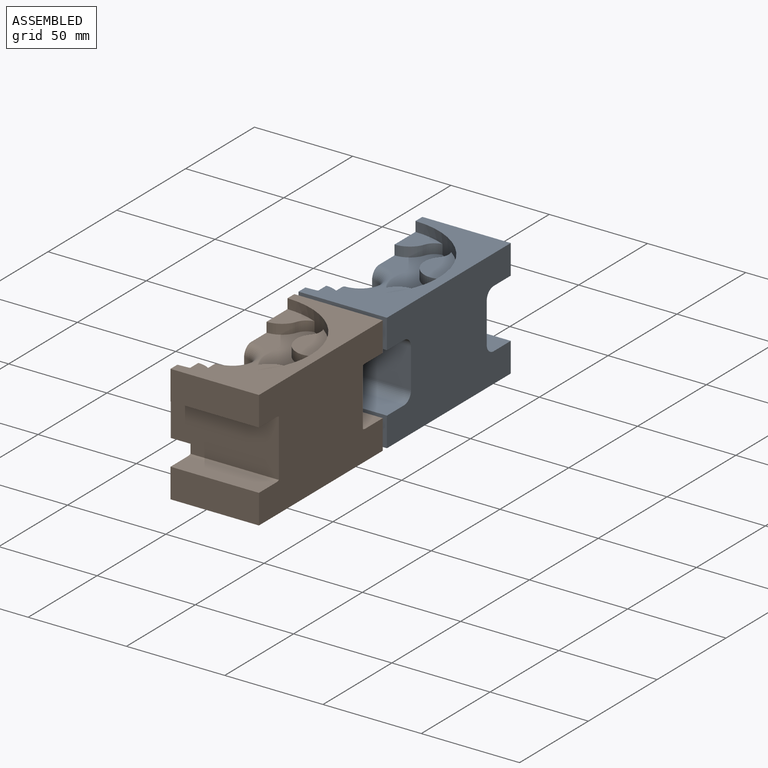
[diagram: assembled view]
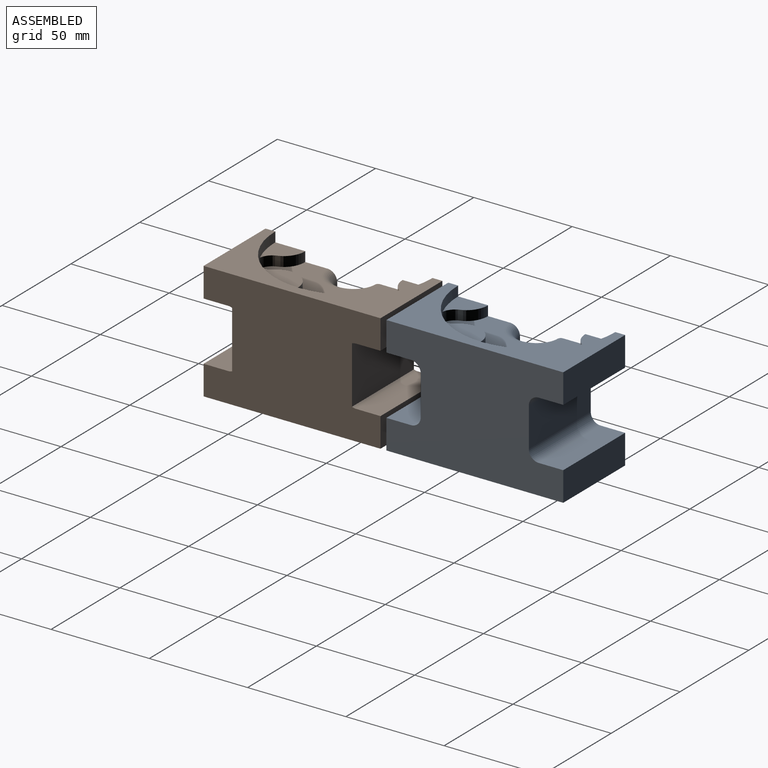
[diagram: assembled view, second angle]
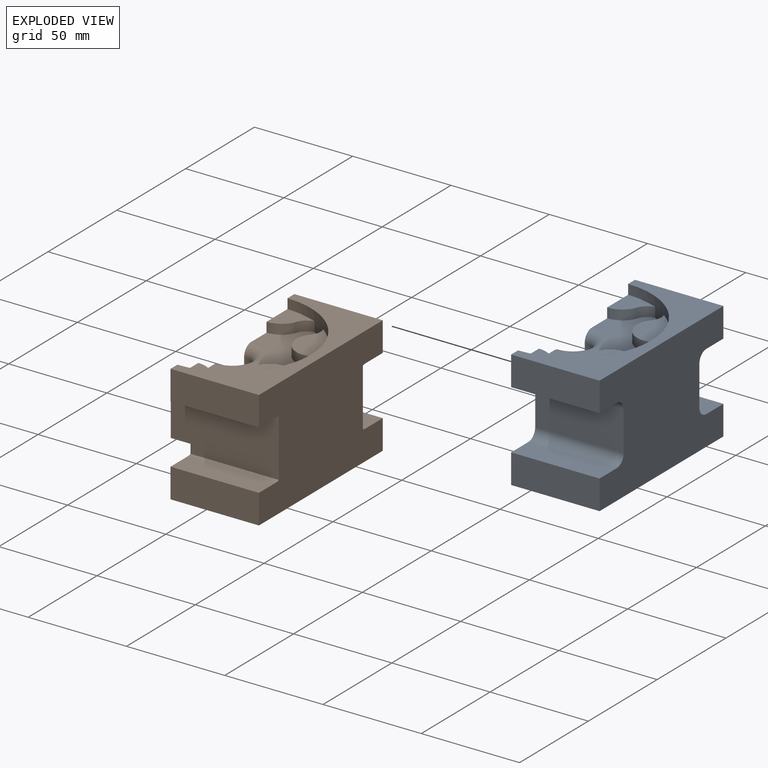
[diagram: exploded view]
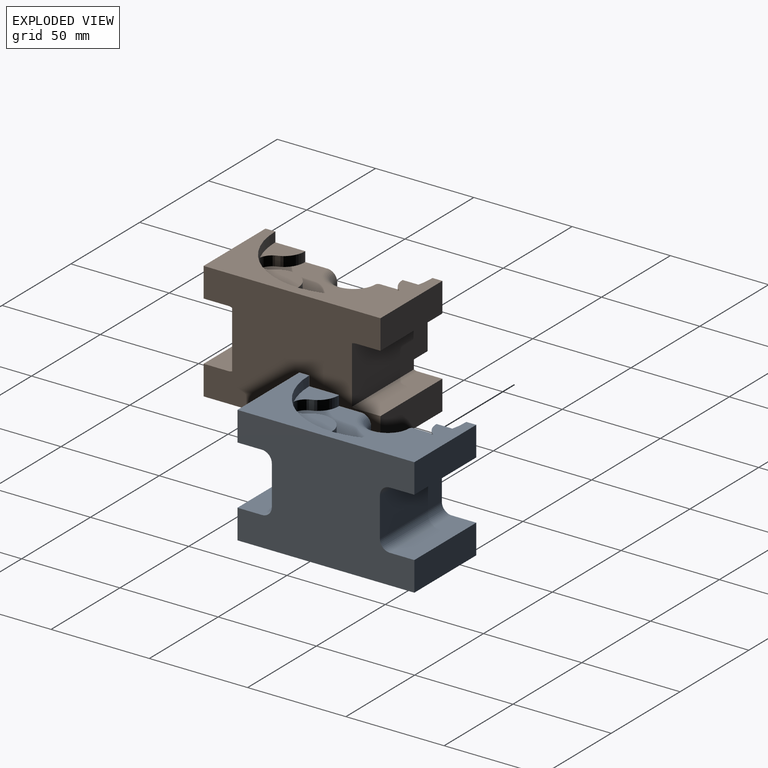
[diagram: exploded view, second angle]
ASSEMBLY  parts=2 mates=2
PART A: 52 faces, bbox 45x90x60 mm
  f0: plane 90x60mm, normal (-1,0,0), area 2774.6mm2, adj f1,f2,f3,f4,f5,f6,f7,f8
  f1: plane 45x20mm, normal (0,1,0), area 900mm2, adj f0,f2,f16,f17
  f2: cylinder r=5mm len=45mm, axis (-1,0,0), area 353.4mm2, adj f0,f1,f3,f17
  f3: plane 45x12.5mm, normal (0,0,-1), area 562.5mm2, adj f0,f2,f4,f17
  f4: plane 45x15mm, normal (0,1,0), area 675mm2, adj f0,f3,f5,f17
  f5: plane 90x45mm, normal (0,0,1), area 1536.7mm2, adj f0,f4,f6,f17,f31
  f6: plane 45x15mm, normal (0,-1,0), area 675mm2, adj f0,f5,f7,f17
  f7: plane 45x12.5mm, normal (0,0,-1), area 562.5mm2, adj f0,f6,f8,f17
  f8: cylinder r=5mm len=45mm, axis (-1,0,0), area 353.4mm2, adj f0,f7,f9,f17
  f9: plane 45x20mm, normal (0,-1,0), area 900mm2, adj f0,f8,f10,f17
  f10: cylinder r=5mm len=45mm, axis (-1,0,0), area 353.4mm2, adj f0,f9,f11,f17
  f11: plane 45x12.5mm, normal (0,0,1), area 562.5mm2, adj f0,f10,f12,f17
  f12: plane 45x15mm, normal (0,-1,0), area 675mm2, adj f0,f11,f13,f17
  f13: plane 90x45mm, normal (0,0,-1), area 4050mm2, adj f0,f12,f14,f17
  f14: plane 45x15mm, normal (0,1,0), area 675mm2, adj f0,f13,f15,f17
  f15: plane 45x12.5mm, normal (0,0,1), area 562.5mm2, adj f0,f14,f16,f17
  f16: cylinder r=5mm len=45mm, axis (-1,0,0), area 353.4mm2, adj f0,f1,f15,f17
  f17: plane 90x60mm, normal (1,0,0), area 4371.5mm2, adj f1,f2,f3,f4,f5,f6,f7,f8
  f18: plane 73.21x40mm, normal (0,0,1), area 1623.7mm2, adj f0,f26,f27,f28,f29,f30,f40,f41
  f19: plane 73.21x40mm, normal (0,0,-1), area 1337.5mm2, adj f0,f21,f26,f27,f28,f29,f30,f40
  f20: plane 73.21x40mm, normal (0,0,1), area 1337.5mm2, adj f0,f23,f24,f25,f31,f32,f33,f34
  f21: torus R=13.5mm, axis (0,0,-1), area 254.6mm2, adj f0,f19,f22
  f22: cylinder r=8.5mm len=30mm, axis (0,0,-1), area 801.1mm2, adj f0,f21,f23
  f23: torus R=13.5mm, axis (0,0,-1), area 254.6mm2, adj f0,f20,f22
  f24: extruded ~10.34x6.98mm, area 66.7mm2, adj f0,f20,f35,f50
  f25: extruded ~10.34x7.13mm, area 67mm2, adj f0,f20,f36,f49
  f26: extruded ~10.34x6.98mm, area 66.7mm2, adj f0,f18,f19,f43
  f27: extruded ~10.34x7.13mm, area 67mm2, adj f0,f18,f19,f44
  f28: cylinder r=40mm len=8.67mm, axis (0,0,-1), area 43.5mm2, adj f18,f19,f41,f45
  f29: cylinder r=40mm len=7.52mm, axis (0,0,-1), area 43.5mm2, adj f18,f19,f44,f46
  f30: cylinder r=40mm len=7.51mm, axis (0,0,-1), area 43.5mm2, adj f18,f19,f40,f43
  f31: cylinder r=40mm len=80mm, axis (0,0,-1), area 758.7mm2, adj f0,f5,f20,f33,f34,f35,f36,f38
  f32: extruded ~18.18x12.74mm, area 133.7mm2, adj f20,f33,f34,f51
  f33: cylinder r=7.1mm len=7.1mm, axis (0,0,1), area 39.9mm2, adj f20,f31,f32,f51
  f34: cylinder r=7.1mm len=7.34mm, axis (0,0,1), area 39.2mm2, adj f20,f31,f32,f51
  f35: cylinder r=7.1mm len=5.81mm, axis (0,0,1), area 39.9mm2, adj f20,f24,f31,f50
  f36: cylinder r=7.1mm len=5.76mm, axis (0,0,1), area 39.2mm2, adj f20,f25,f31,f49
  f37: extruded ~18.03x12.94mm, area 133.7mm2, adj f20,f38,f39,f48
  f38: cylinder r=7.1mm len=7.46mm, axis (0,0,1), area 39.9mm2, adj f20,f31,f37,f48
  f39: cylinder r=7.1mm len=6.96mm, axis (0,0,1), area 39.2mm2, adj f20,f31,f37,f48
  f40: cylinder r=7.1mm len=7.34mm, axis (0,0,1), area 39.2mm2, adj f18,f19,f30,f42
  f41: cylinder r=7.1mm len=7.1mm, axis (0,0,1), area 39.9mm2, adj f18,f19,f28,f42
  f42: extruded ~18.18x12.74mm, area 133.7mm2, adj f18,f19,f40,f41
  f43: cylinder r=7.1mm len=5.81mm, axis (0,0,1), area 39.9mm2, adj f18,f19,f26,f30
  f44: cylinder r=7.1mm len=5.76mm, axis (0,0,1), area 39.2mm2, adj f18,f19,f27,f29
  f45: cylinder r=7.1mm len=6.96mm, axis (0,0,1), area 39.2mm2, adj f18,f19,f28,f47
  f46: cylinder r=7.1mm len=7.46mm, axis (0,0,1), area 39.9mm2, adj f18,f19,f29,f47
  f47: extruded ~18.03x12.94mm, area 133.7mm2, adj f18,f19,f45,f46
  f48: plane 27.92x19.9mm, normal (0,0,1), area 296.5mm2, adj f31,f37,f38,f39
  f49: plane 16.1x15.23mm, normal (0,0,1), area 147.7mm2, adj f0,f25,f31,f36
  f50: plane 16.15x15.23mm, normal (0,0,1), area 148.8mm2, adj f0,f24,f31,f35
  f51: plane 27.94x19.84mm, normal (0,0,1), area 296.5mm2, adj f31,f32,f33,f34
PART B: 60 faces, bbox 55x90x60 mm
  f0: plane 90x60mm, normal (-1,0,0), area 2814.2mm2, adj f1,f2,f3,f4,f5,f6,f7,f8
  f1: cylinder r=5mm len=45mm, axis (-1,0,0), area 92.6mm2, adj f0,f2,f15,f59
  f2: plane 45x12.5mm, normal (0,0,-1), area 562.5mm2, adj f0,f1,f3,f15
  f3: plane 45x15mm, normal (0,1,0), area 675mm2, adj f0,f2,f4,f15
  f4: plane 90x45mm, normal (0,0,1), area 1536.7mm2, adj f0,f3,f5,f15,f29
  f5: plane 45x15mm, normal (0,-1,0), area 675mm2, adj f0,f4,f6,f15
  f6: plane 45x12.5mm, normal (0,0,-1), area 562.5mm2, adj f0,f5,f7,f15
  f7: cylinder r=5mm len=45mm, axis (-1,0,0), area 92.6mm2, adj f0,f6,f15,f54
  f8: cylinder r=5mm len=45mm, axis (-1,0,0), area 92.6mm2, adj f0,f9,f15,f54
  f9: plane 45x12.5mm, normal (0,0,1), area 562.5mm2, adj f0,f8,f10,f15
  f10: plane 45x15mm, normal (0,-1,0), area 675mm2, adj f0,f9,f11,f15
  f11: plane 90x45mm, normal (0,0,-1), area 4050mm2, adj f0,f10,f12,f15
  f12: plane 45x15mm, normal (0,1,0), area 675mm2, adj f0,f11,f13,f15
  f13: plane 45x12.5mm, normal (0,0,1), area 562.5mm2, adj f0,f12,f14,f15
  f14: cylinder r=5mm len=45mm, axis (-1,0,0), area 92.6mm2, adj f0,f13,f15,f59
  f15: plane 90x60mm, normal (1,0,0), area 4531.1mm2, adj f1,f2,f3,f4,f5,f6,f7,f8
  f16: plane 73.21x40mm, normal (0,0,1), area 1623.7mm2, adj f0,f24,f25,f26,f27,f28,f38,f39
  f17: plane 73.21x40mm, normal (0,0,-1), area 1337.5mm2, adj f0,f19,f24,f25,f26,f27,f28,f38
  f18: plane 73.21x40mm, normal (0,0,1), area 1337.5mm2, adj f0,f21,f22,f23,f29,f30,f31,f32
  f19: torus R=13.5mm, axis (0,0,-1), area 254.6mm2, adj f0,f17,f20
  f20: cylinder r=8.5mm len=30mm, axis (0,0,-1), area 801.1mm2, adj f0,f19,f21
  f21: torus R=13.5mm, axis (0,0,-1), area 254.6mm2, adj f0,f18,f20
  f22: extruded ~10.34x6.98mm, area 66.7mm2, adj f0,f18,f33,f48
  f23: extruded ~10.34x7.13mm, area 67mm2, adj f0,f18,f34,f47
  f24: extruded ~10.34x6.98mm, area 66.7mm2, adj f0,f16,f17,f41
  f25: extruded ~10.34x7.13mm, area 67mm2, adj f0,f16,f17,f42
  f26: cylinder r=40mm len=8.67mm, axis (0,0,-1), area 43.5mm2, adj f16,f17,f39,f43
  f27: cylinder r=40mm len=7.52mm, axis (0,0,-1), area 43.5mm2, adj f16,f17,f42,f44
  f28: cylinder r=40mm len=7.51mm, axis (0,0,-1), area 43.5mm2, adj f16,f17,f38,f41
  f29: cylinder r=40mm len=80mm, axis (0,0,-1), area 758.7mm2, adj f0,f4,f18,f31,f32,f33,f34,f36
  f30: extruded ~18.18x12.74mm, area 133.7mm2, adj f18,f31,f32,f49
  f31: cylinder r=7.1mm len=7.1mm, axis (0,0,1), area 39.9mm2, adj f18,f29,f30,f49
  f32: cylinder r=7.1mm len=7.34mm, axis (0,0,1), area 39.2mm2, adj f18,f29,f30,f49
  f33: cylinder r=7.1mm len=5.81mm, axis (0,0,1), area 39.9mm2, adj f18,f22,f29,f48
  f34: cylinder r=7.1mm len=5.76mm, axis (0,0,1), area 39.2mm2, adj f18,f23,f29,f47
  f35: extruded ~18.03x12.94mm, area 133.7mm2, adj f18,f36,f37,f46
  f36: cylinder r=7.1mm len=7.46mm, axis (0,0,1), area 39.9mm2, adj f18,f29,f35,f46
  f37: cylinder r=7.1mm len=6.96mm, axis (0,0,1), area 39.2mm2, adj f18,f29,f35,f46
  f38: cylinder r=7.1mm len=7.34mm, axis (0,0,1), area 39.2mm2, adj f16,f17,f28,f40
  f39: cylinder r=7.1mm len=7.1mm, axis (0,0,1), area 39.9mm2, adj f16,f17,f26,f40
  f40: extruded ~18.18x12.74mm, area 133.7mm2, adj f16,f17,f38,f39
  f41: cylinder r=7.1mm len=5.81mm, axis (0,0,1), area 39.9mm2, adj f16,f17,f24,f28
  f42: cylinder r=7.1mm len=5.76mm, axis (0,0,1), area 39.2mm2, adj f16,f17,f25,f27
  f43: cylinder r=7.1mm len=6.96mm, axis (0,0,1), area 39.2mm2, adj f16,f17,f26,f45
  f44: cylinder r=7.1mm len=7.46mm, axis (0,0,1), area 39.9mm2, adj f16,f17,f27,f45
  f45: extruded ~18.03x12.94mm, area 133.7mm2, adj f16,f17,f43,f44
  f46: plane 27.92x19.9mm, normal (0,0,1), area 296.5mm2, adj f29,f35,f36,f37
  f47: plane 16.1x15.23mm, normal (0,0,1), area 147.7mm2, adj f0,f23,f29,f34
  f48: plane 16.15x15.23mm, normal (0,0,1), area 148.8mm2, adj f0,f22,f29,f33
  f49: plane 27.94x19.84mm, normal (0,0,1), area 296.5mm2, adj f29,f30,f31,f32
  f50: plane 20x10mm, normal (0,1,0), area 200mm2, adj f0,f51,f52,f53
  f51: plane 10x3mm, normal (0,0,1), area 30mm2, adj f0,f50,f52,f54
  f52: plane 20x3mm, normal (-1,0,0), area 60mm2, adj f50,f51,f53,f54
  f53: plane 10x3mm, normal (0,0,-1), area 30mm2, adj f0,f50,f52,f54
  f54: plane 55x29.17mm, normal (0,-1,0), area 1512.4mm2, adj f0,f7,f8,f15,f51,f52,f53
  f55: plane 20x10mm, normal (0,-1,0), area 200mm2, adj f0,f56,f57,f58
  f56: plane 10x3mm, normal (0,0,1), area 30mm2, adj f0,f55,f57,f59
  f57: plane 20x3mm, normal (-1,0,0), area 60mm2, adj f55,f56,f58,f59
  f58: plane 10x3mm, normal (0,0,-1), area 30mm2, adj f0,f55,f57,f59
  f59: plane 55x29.17mm, normal (0,1,0), area 1512.4mm2, adj f0,f1,f14,f15,f56,f57,f58
PLACE A t=(-14.4,111.98,10.38)mm
PLACE B t=(-14.4,18.98,10.38)mm
MATE planar B.f15 <-> A.f17  axis (1,0,0) through (30.6,18.98,10.38)mm
MATE planar B.f11 <-> A.f13  axis (0,0,-1) through (8.1,18.98,-19.62)mm
